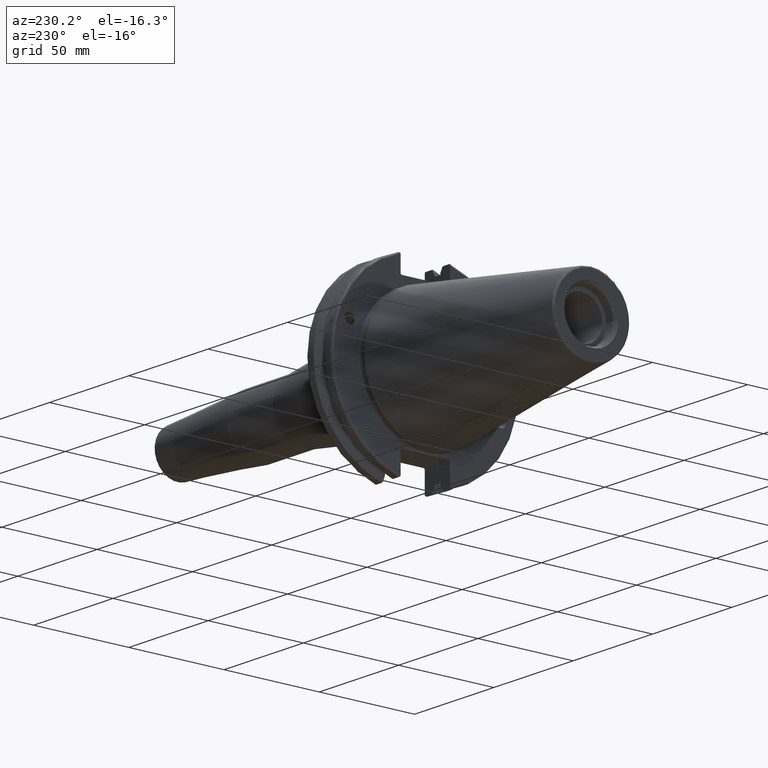
[diagram: clean part render]
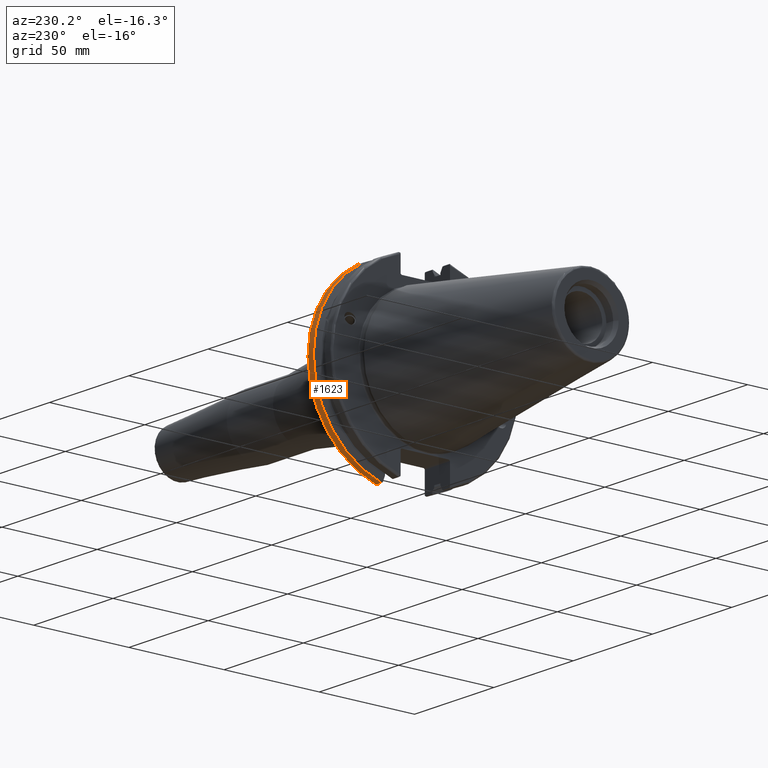
[diagram: same view with one face highlighted and labeled with its STEP entity id]
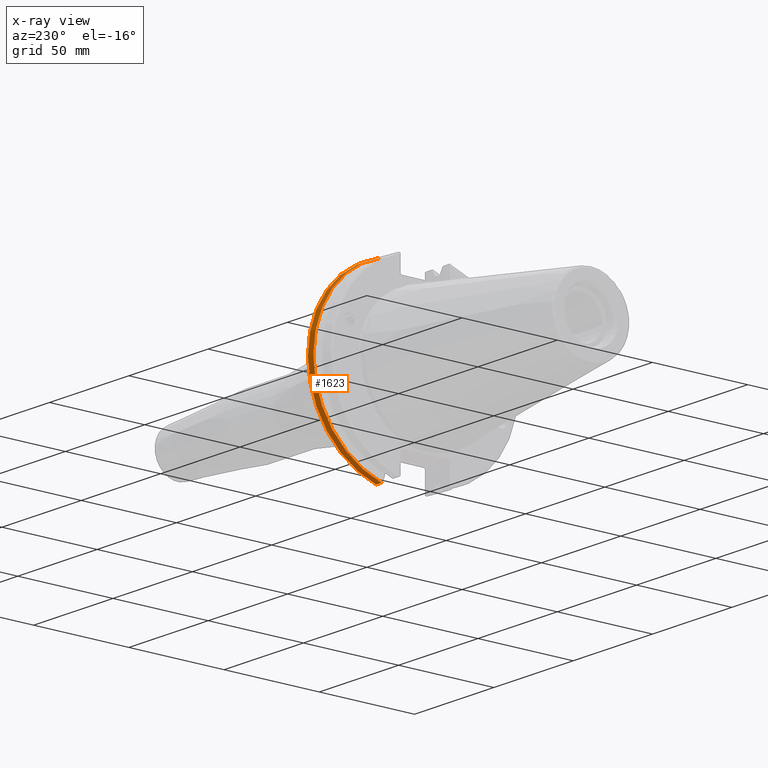
[diagram: x-ray of the same camera — body ghosted, the highlighted face saturated]
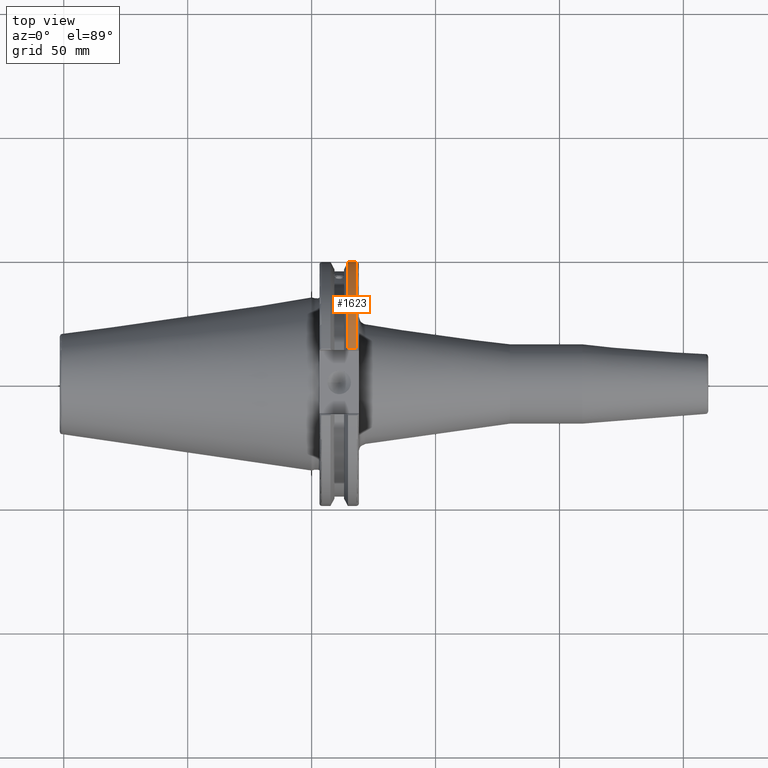
[diagram: same view with one face highlighted and labeled with its STEP entity id]
A machine part, auxiliary view. The second image highlights one B-rep face of the part: STEP entity #1623.
The next image is the same camera in x-ray: the body ghosted, the highlighted face saturated — about 0% of this face is hidden behind the body in this view.
A second angle (top view) of the same face is appended — the face is thin or edge-on in the first view.
In plain terms, the highlighted cylindrical surface (partial cylindrical patch) has radius 49.2125 mm, axis along (1, 0, 0).
Its self-contained STEP definition (entity closure, byte-faithful):
#165=CYLINDRICAL_SURFACE('',#1813,49.2125);
#246=FACE_OUTER_BOUND('',#359,.T.);
#359=EDGE_LOOP('',(#1452,#1453,#1454,#1455));
#443=LINE('',#3026,#542);
#471=LINE('',#3218,#570);
#542=VECTOR('',#2140,10.);
#570=VECTOR('',#2234,10.);
#636=CIRCLE('',#1778,49.2125);
#647=CIRCLE('',#1814,49.2125);
#779=VERTEX_POINT('',#3000);
#780=VERTEX_POINT('',#3009);
#782=VERTEX_POINT('',#3022);
#811=VERTEX_POINT('',#3217);
#976=EDGE_CURVE('',#779,#780,#636,.T.);
#980=EDGE_CURVE('',#782,#779,#443,.T.);
#1036=EDGE_CURVE('',#780,#811,#471,.T.);
#1038=EDGE_CURVE('',#782,#811,#647,.T.);
#1452=ORIENTED_EDGE('',*,*,#976,.F.);
#1453=ORIENTED_EDGE('',*,*,#980,.F.);
#1454=ORIENTED_EDGE('',*,*,#1038,.T.);
#1455=ORIENTED_EDGE('',*,*,#1036,.F.);
#1623=ADVANCED_FACE('',(#246),#165,.T.);
#1778=AXIS2_PLACEMENT_3D('',#3010,#2135,#2136);
#1813=AXIS2_PLACEMENT_3D('',#3222,#2235,#2236);
#1814=AXIS2_PLACEMENT_3D('',#3223,#2237,#2238);
#2135=DIRECTION('center_axis',(1.,0.,0.));
#2136=DIRECTION('ref_axis',(0.,1.,-6.12323399573677E-17));
#2140=DIRECTION('',(1.,0.,0.));
#2234=DIRECTION('',(-1.,0.,0.));
#2235=DIRECTION('center_axis',(1.,0.,0.));
#2236=DIRECTION('ref_axis',(0.,1.,0.));
#2237=DIRECTION('center_axis',(1.,0.,0.));
#2238=DIRECTION('ref_axis',(0.,0.,-1.));
#3000=CARTESIAN_POINT('',(18.05,13.4317035994433,-47.3440544806494));
#3009=CARTESIAN_POINT('',(18.05,13.4317035994433,47.3440544806494));
#3010=CARTESIAN_POINT('Origin',(18.05,0.,0.));
#3022=CARTESIAN_POINT('',(14.6602090340487,13.4317035994433,-47.3440544806494));
#3026=CARTESIAN_POINT('',(16.8551045170244,13.4317035994433,-47.3440544806494));
#3217=CARTESIAN_POINT('',(14.6602090340487,13.4317035994433,47.3440544806494));
#3218=CARTESIAN_POINT('',(16.8551045170244,13.4317035994433,47.3440544806494));
#3222=CARTESIAN_POINT('Origin',(16.8551045170244,0.,0.));
#3223=CARTESIAN_POINT('Origin',(14.6602090340487,0.,0.));